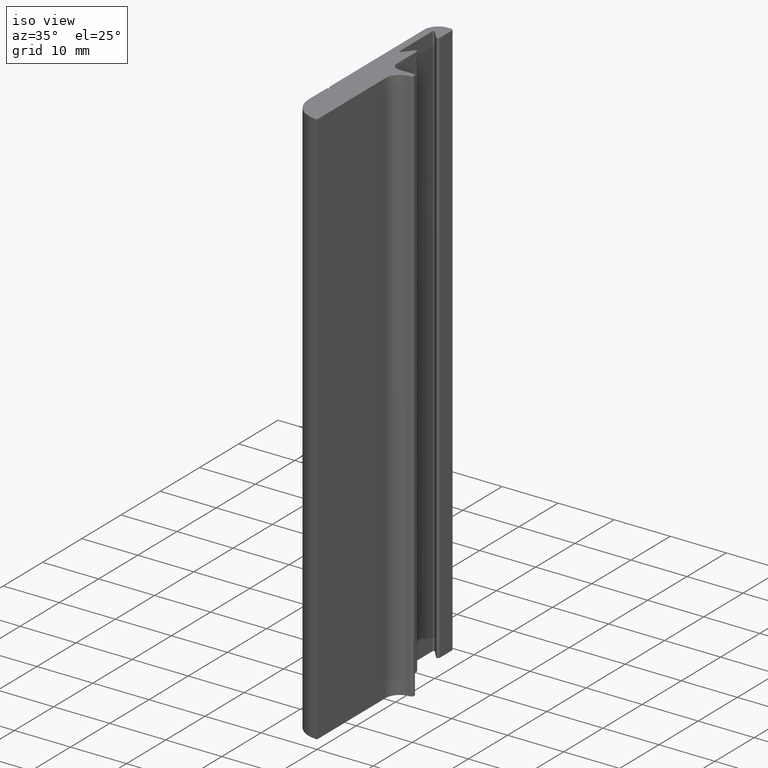
[diagram: clean part render]
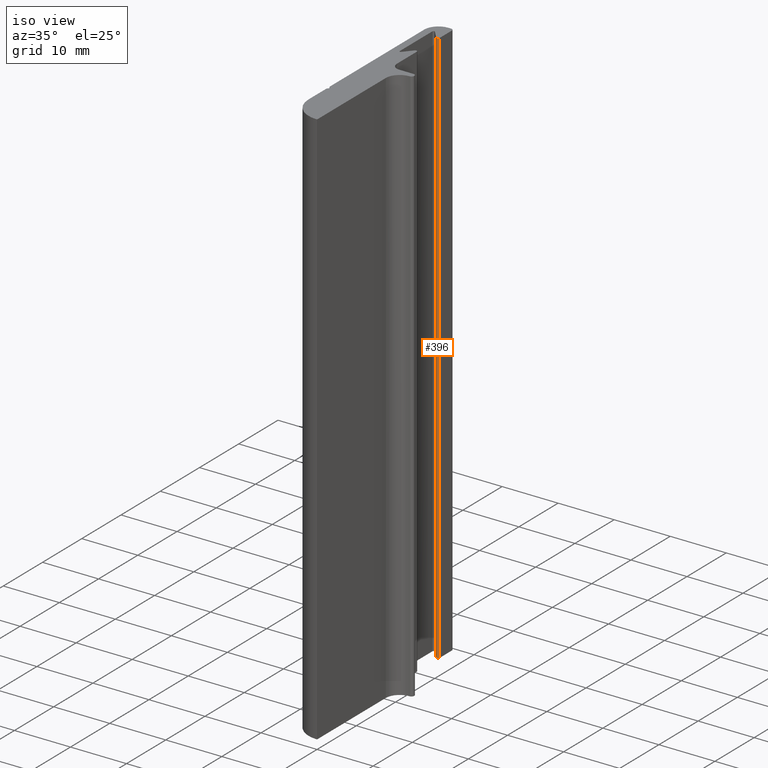
[diagram: same view with one face highlighted and labeled with its STEP entity id]
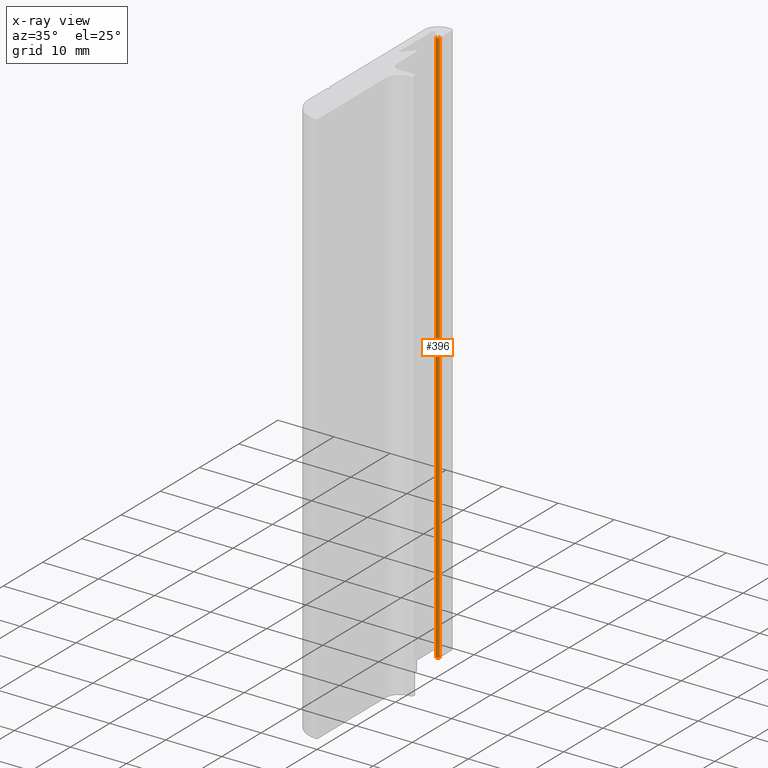
[diagram: x-ray of the same camera — body ghosted, the highlighted face saturated]
A machine part, iso view. The second image highlights one B-rep face of the part: STEP entity #396.
The next image is the same camera in x-ray: the body ghosted, the highlighted face saturated — about 0% of this face is hidden behind the body in this view.
In plain terms, the highlighted cylindrical surface (edge-blend (fillet) strip) has radius 0.3 mm, axis along (0, 0, 1).
Its self-contained STEP definition (entity closure, byte-faithful):
#338=CARTESIAN_POINT('',(-2.029812803122468,33.236425750665376,0.0));
#339=VERTEX_POINT('',#338);
#346=CARTESIAN_POINT('',(-2.029812803122468,33.236425750665376,100.0));
#347=VERTEX_POINT('',#346);
#348=CARTESIAN_POINT('',(-2.029812803122468,33.236425750665376,0.0));
#349=DIRECTION('',(0.0,0.0,1.0));
#350=VECTOR('',#349,100.0);
#351=LINE('',#348,#350);
#352=EDGE_CURVE('',#339,#347,#351,.T.);
#364=CARTESIAN_POINT('',(-1.799999700000001,33.429261840734853,0.0));
#365=DIRECTION('',(0.0,0.0,1.0));
#366=DIRECTION('',(-0.766044443119313,-0.642787609686140,0.0));
#367=AXIS2_PLACEMENT_3D('',#364,#365,#366);
#368=CYLINDRICAL_SURFACE('',#367,0.299999700000000);
#369=CARTESIAN_POINT('',(-1.500000000000000,33.429261840734853,0.0));
#370=VERTEX_POINT('',#369);
#371=CARTESIAN_POINT('',(-1.799999700000001,33.429261840734853,0.0));
#372=DIRECTION('',(0.0,0.0,1.0));
#373=DIRECTION('',(1.0,0.0,0.0));
#374=AXIS2_PLACEMENT_3D('',#371,#372,#373);
#375=CIRCLE('',#374,0.299999700000000);
#376=EDGE_CURVE('',#339,#370,#375,.T.);
#377=ORIENTED_EDGE('',*,*,#376,.T.);
#378=CARTESIAN_POINT('',(-1.500000000000000,33.429261840734853,100.0));
#379=VERTEX_POINT('',#378);
#380=CARTESIAN_POINT('',(-1.500000000000000,33.429261840734853,0.0));
#381=DIRECTION('',(0.0,0.0,1.0));
#382=VECTOR('',#381,100.0);
#383=LINE('',#380,#382);
#384=EDGE_CURVE('',#370,#379,#383,.T.);
#385=ORIENTED_EDGE('',*,*,#384,.T.);
#386=CARTESIAN_POINT('',(-1.799999700000001,33.429261840734853,100.0));
#387=DIRECTION('',(0.0,0.0,1.0));
#388=DIRECTION('',(1.0,0.0,0.0));
#389=AXIS2_PLACEMENT_3D('',#386,#387,#388);
#390=CIRCLE('',#389,0.299999700000000);
#391=EDGE_CURVE('',#347,#379,#390,.T.);
#392=ORIENTED_EDGE('',*,*,#391,.F.);
#393=ORIENTED_EDGE('',*,*,#352,.F.);
#394=EDGE_LOOP('',(#377,#385,#392,#393));
#395=FACE_OUTER_BOUND('',#394,.T.);
#396=ADVANCED_FACE('',(#395),#368,.T.);